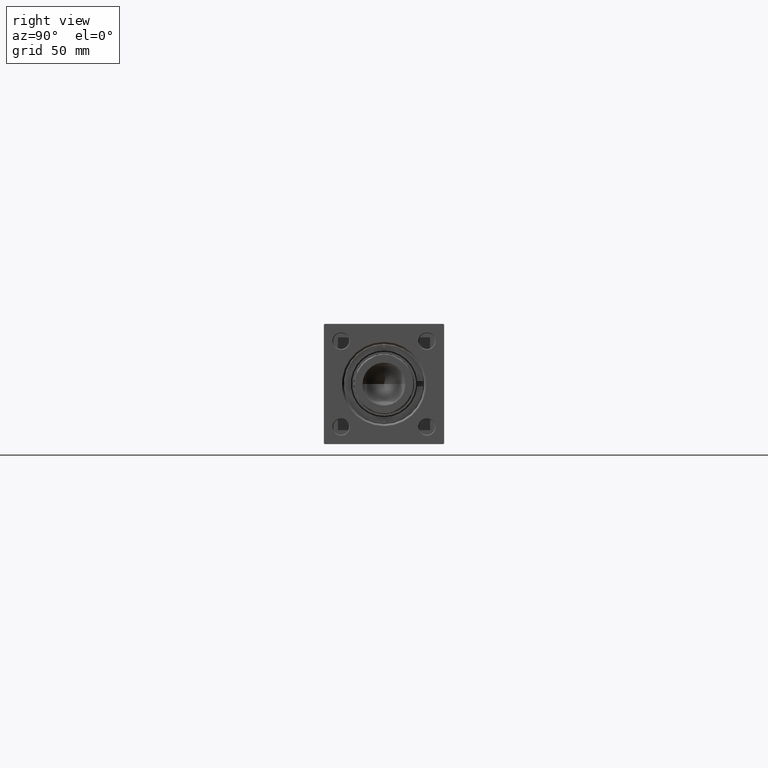
[diagram: clean part render]
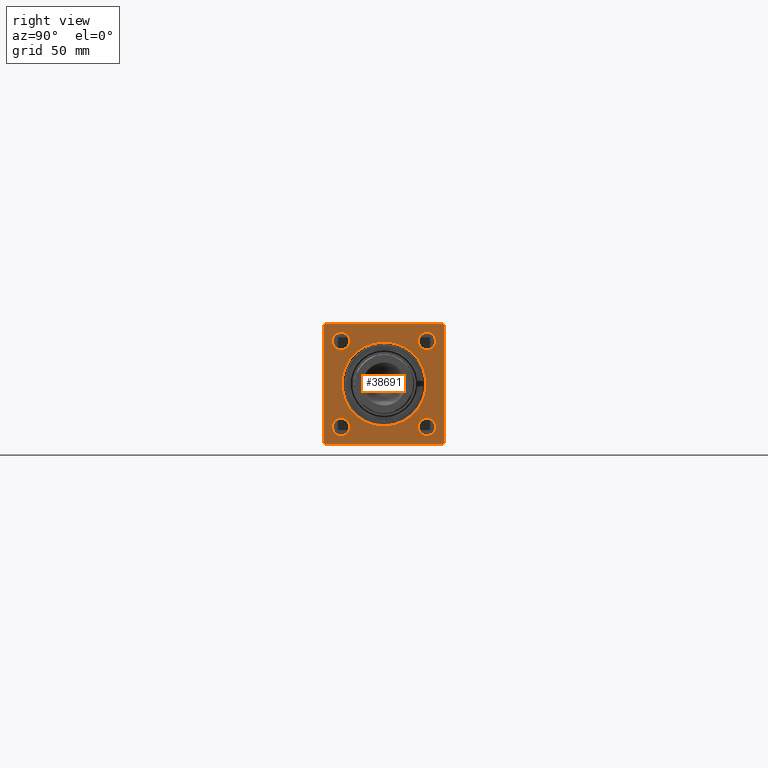
[diagram: same view with one face highlighted and labeled with its STEP entity id]
A machine part, right view. The second image highlights one B-rep face of the part: STEP entity #38691.
In plain terms, the highlighted planar face has unit normal (-1, 0, 0).
Its self-contained STEP definition (entity closure, byte-faithful):
#255 = LINE ( 'NONE', #24413, #6701 ) ;
#738 = CARTESIAN_POINT ( 'NONE',  ( 485.0000000000000000, 0.000000000000000000, -31.49999999999997158 ) ) ;
#910 = VERTEX_POINT ( 'NONE', #23471 ) ;
#1293 = EDGE_CURVE ( 'NONE', #10957, #35024, #255, .T. ) ;
#1385 = VECTOR ( 'NONE', #1933, 1000.000000000000000 ) ;
#1736 = EDGE_LOOP ( 'NONE', ( #35963, #15387 ) ) ;
#1933 = DIRECTION ( 'NONE',  ( 0.000000000000000000, -0.7071067811865867636, 0.7071067811865081598 ) ) ;
#2230 = LINE ( 'NONE', #43688, #28738 ) ;
#2316 = FACE_BOUND ( 'NONE', #1736, .T. ) ;
#2376 = LINE ( 'NONE', #13053, #46108 ) ;
#2484 = DIRECTION ( 'NONE',  ( 0.000000000000000000, 0.000000000000000000, 1.000000000000000000 ) ) ;
#3147 = EDGE_CURVE ( 'NONE', #46342, #42246, #20597, .T. ) ;
#4155 = CIRCLE ( 'NONE', #10653, 6.500000000000117240 ) ;
#4303 = AXIS2_PLACEMENT_3D ( 'NONE', #18286, #29988, #48560 ) ;
#5079 = CARTESIAN_POINT ( 'NONE',  ( 485.0000000000000000, -32.15000000000001279, -32.15000000000000568 ) ) ;
#6074 = CARTESIAN_POINT ( 'NONE',  ( 485.0000000000000000, 0.000000000000000000, 0.000000000000000000 ) ) ;
#6415 = EDGE_LOOP ( 'NONE', ( #9243, #41576 ) ) ;
#6531 = VERTEX_POINT ( 'NONE', #42997 ) ;
#6683 = EDGE_CURVE ( 'NONE', #30156, #33695, #39240, .T. ) ;
#6701 = VECTOR ( 'NONE', #20604, 1000.000000000000000 ) ;
#7299 = CARTESIAN_POINT ( 'NONE',  ( 485.0000000000000000, 32.14999999999999147, 32.15000000000000568 ) ) ;
#7445 = CARTESIAN_POINT ( 'NONE',  ( 485.0000000000000000, -45.00000000000000000, 44.49999999999992895 ) ) ;
#9243 = ORIENTED_EDGE ( 'NONE', *, *, #30256, .T. ) ;
#9400 = CIRCLE ( 'NONE', #28124, 6.500000000000117240 ) ;
#10089 = DIRECTION ( 'NONE',  ( 0.000000000000000000, 0.000000000000000000, -1.000000000000000000 ) ) ;
#10310 = CARTESIAN_POINT ( 'NONE',  ( 485.0000000000000000, 32.14999999999999147, 25.64999999999989555 ) ) ;
#10653 = AXIS2_PLACEMENT_3D ( 'NONE', #30955, #37391, #45020 ) ;
#10898 = CARTESIAN_POINT ( 'NONE',  ( 485.0000000000000000, -44.49999999999997158, 44.99999999999998579 ) ) ;
#10952 = VECTOR ( 'NONE', #33240, 1000.000000000000000 ) ;
#10957 = VERTEX_POINT ( 'NONE', #18826 ) ;
#11079 = CIRCLE ( 'NONE', #32182, 6.500000000000110134 ) ;
#11569 = EDGE_CURVE ( 'NONE', #20946, #30022, #42120, .T. ) ;
#12103 = ORIENTED_EDGE ( 'NONE', *, *, #32241, .T. ) ;
#12147 = CARTESIAN_POINT ( 'NONE',  ( 485.0000000000000000, 3.857637417314158745E-15, 31.49999999999997158 ) ) ;
#12238 = VERTEX_POINT ( 'NONE', #12147 ) ;
#12446 = EDGE_CURVE ( 'NONE', #48963, #30022, #25872, .T. ) ;
#13053 = CARTESIAN_POINT ( 'NONE',  ( 485.0000000000000000, 45.00000000000001421, -45.00000000000000000 ) ) ;
#13644 = EDGE_LOOP ( 'NONE', ( #12103, #45545 ) ) ;
#13758 = DIRECTION ( 'NONE',  ( -1.000000000000000000, 0.000000000000000000, -0.000000000000000000 ) ) ;
#14229 = EDGE_LOOP ( 'NONE', ( #32195, #50097 ) ) ;
#15387 = ORIENTED_EDGE ( 'NONE', *, *, #49745, .T. ) ;
#16036 = AXIS2_PLACEMENT_3D ( 'NONE', #7299, #35266, #35518 ) ;
#16880 = ORIENTED_EDGE ( 'NONE', *, *, #38389, .F. ) ;
#17005 = EDGE_CURVE ( 'NONE', #32395, #50107, #47683, .T. ) ;
#17057 = FACE_BOUND ( 'NONE', #14229, .T. ) ;
#17443 = EDGE_CURVE ( 'NONE', #34580, #910, #25395, .T. ) ;
#17567 = FACE_BOUND ( 'NONE', #6415, .T. ) ;
#17754 = CARTESIAN_POINT ( 'NONE',  ( 485.0000000000000000, -45.00000000000000000, 44.99999999999998579 ) ) ;
#17839 = VERTEX_POINT ( 'NONE', #738 ) ;
#18286 = CARTESIAN_POINT ( 'NONE',  ( 485.0000000000000000, -32.14999999999999147, 32.14999999999999147 ) ) ;
#18826 = CARTESIAN_POINT ( 'NONE',  ( 485.0000000000000000, 44.49999999999990052, 45.00000000000000000 ) ) ;
#18908 = EDGE_CURVE ( 'NONE', #910, #6531, #42727, .T. ) ;
#20119 = AXIS2_PLACEMENT_3D ( 'NONE', #36401, #13758, #40979 ) ;
#20597 = CIRCLE ( 'NONE', #24661, 6.500000000000117240 ) ;
#20604 = DIRECTION ( 'NONE',  ( 0.000000000000000000, -1.000000000000000000, -1.541976423090495140E-16 ) ) ;
#20634 = DIRECTION ( 'NONE',  ( 0.000000000000000000, 0.000000000000000000, 1.000000000000000000 ) ) ;
#20946 = VERTEX_POINT ( 'NONE', #26840 ) ;
#21098 = DIRECTION ( 'NONE',  ( 0.000000000000000000, 0.000000000000000000, 1.000000000000000000 ) ) ;
#21553 = CARTESIAN_POINT ( 'NONE',  ( 485.0000000000000000, 45.00000000000001421, -44.49999999999994316 ) ) ;
#21606 = DIRECTION ( 'NONE',  ( -1.000000000000000000, -0.000000000000000000, -0.000000000000000000 ) ) ;
#23110 = CIRCLE ( 'NONE', #24740, 31.49999999999997158 ) ;
#23161 = CARTESIAN_POINT ( 'NONE',  ( 485.0000000000000000, -44.49999999999992895, -45.00000000000000000 ) ) ;
#23251 = CARTESIAN_POINT ( 'NONE',  ( 485.0000000000000000, -32.14999999999999147, 32.14999999999999147 ) ) ;
#23326 = CARTESIAN_POINT ( 'NONE',  ( 485.0000000000000000, -32.14999999999999147, 38.65000000000010516 ) ) ;
#23391 = ORIENTED_EDGE ( 'NONE', *, *, #12446, .F. ) ;
#23471 = CARTESIAN_POINT ( 'NONE',  ( 485.0000000000000000, -44.99999999999999289, -44.49999999999997158 ) ) ;
#24413 = CARTESIAN_POINT ( 'NONE',  ( 485.0000000000000000, 45.00000000000001421, 45.00000000000000000 ) ) ;
#24661 = AXIS2_PLACEMENT_3D ( 'NONE', #5079, #25422, #36120 ) ;
#24694 = CARTESIAN_POINT ( 'NONE',  ( 485.0000000000000000, 32.14999999999999147, -32.15000000000000568 ) ) ;
#24710 = PLANE ( 'NONE',  #20119 ) ;
#24740 = AXIS2_PLACEMENT_3D ( 'NONE', #43631, #25075, #32450 ) ;
#25075 = DIRECTION ( 'NONE',  ( -1.000000000000000000, -0.000000000000000000, -0.000000000000000000 ) ) ;
#25174 = DIRECTION ( 'NONE',  ( 0.000000000000000000, 0.000000000000000000, 1.000000000000000000 ) ) ;
#25395 = LINE ( 'NONE', #17754, #50126 ) ;
#25422 = DIRECTION ( 'NONE',  ( -1.000000000000000000, -0.000000000000000000, -0.000000000000000000 ) ) ;
#25677 = CARTESIAN_POINT ( 'NONE',  ( 485.0000000000000000, 32.14999999999999147, 32.15000000000000568 ) ) ;
#25872 = LINE ( 'NONE', #45672, #40252 ) ;
#26480 = ORIENTED_EDGE ( 'NONE', *, *, #34998, .T. ) ;
#26840 = CARTESIAN_POINT ( 'NONE',  ( 485.0000000000000000, 44.50000000000001421, -45.00000000000000000 ) ) ;
#28124 = AXIS2_PLACEMENT_3D ( 'NONE', #24694, #28271, #20634 ) ;
#28271 = DIRECTION ( 'NONE',  ( -1.000000000000000000, -0.000000000000000000, -0.000000000000000000 ) ) ;
#28284 = CARTESIAN_POINT ( 'NONE',  ( 485.0000000000000000, 32.14999999999999147, -38.65000000000012648 ) ) ;
#28447 = DIRECTION ( 'NONE',  ( -0.000000000000000000, -0.7071067811865081598, -0.7071067811865867636 ) ) ;
#28738 = VECTOR ( 'NONE', #28447, 1000.000000000000000 ) ;
#28780 = FACE_BOUND ( 'NONE', #13644, .T. ) ;
#29038 = EDGE_CURVE ( 'NONE', #35024, #34580, #2230, .T. ) ;
#29646 = CARTESIAN_POINT ( 'NONE',  ( 485.0000000000000000, 44.49999999999990052, 45.00000000000000000 ) ) ;
#29963 = AXIS2_PLACEMENT_3D ( 'NONE', #6074, #21606, #21098 ) ;
#29988 = DIRECTION ( 'NONE',  ( -1.000000000000000000, -0.000000000000000000, -0.000000000000000000 ) ) ;
#30010 = CARTESIAN_POINT ( 'NONE',  ( 485.0000000000000000, -32.14999999999999147, 25.64999999999987423 ) ) ;
#30022 = VERTEX_POINT ( 'NONE', #44501 ) ;
#30156 = VERTEX_POINT ( 'NONE', #23326 ) ;
#30256 = EDGE_CURVE ( 'NONE', #17839, #12238, #23110, .T. ) ;
#30386 = VERTEX_POINT ( 'NONE', #49211 ) ;
#30955 = CARTESIAN_POINT ( 'NONE',  ( 485.0000000000000000, 32.14999999999999147, -32.15000000000000568 ) ) ;
#31123 = CARTESIAN_POINT ( 'NONE',  ( 485.0000000000000000, 32.14999999999999147, 38.65000000000011227 ) ) ;
#31627 = DIRECTION ( 'NONE',  ( 0.000000000000000000, 0.000000000000000000, 1.000000000000000000 ) ) ;
#31906 = ORIENTED_EDGE ( 'NONE', *, *, #17443, .T. ) ;
#32182 = AXIS2_PLACEMENT_3D ( 'NONE', #25677, #41187, #25174 ) ;
#32195 = ORIENTED_EDGE ( 'NONE', *, *, #3147, .T. ) ;
#32241 = EDGE_CURVE ( 'NONE', #33695, #30156, #43468, .T. ) ;
#32395 = VERTEX_POINT ( 'NONE', #31123 ) ;
#32427 = CARTESIAN_POINT ( 'NONE',  ( 485.0000000000000000, -32.15000000000001279, -25.64999999999988844 ) ) ;
#32450 = DIRECTION ( 'NONE',  ( 0.000000000000000000, 0.000000000000000000, 1.000000000000000000 ) ) ;
#32842 = FACE_OUTER_BOUND ( 'NONE', #40099, .T. ) ;
#33240 = DIRECTION ( 'NONE',  ( -0.000000000000000000, 0.7071067811865081598, 0.7071067811865867636 ) ) ;
#33517 = EDGE_CURVE ( 'NONE', #38655, #30386, #9400, .T. ) ;
#33695 = VERTEX_POINT ( 'NONE', #30010 ) ;
#34580 = VERTEX_POINT ( 'NONE', #7445 ) ;
#34998 = EDGE_CURVE ( 'NONE', #50107, #32395, #11079, .T. ) ;
#35024 = VERTEX_POINT ( 'NONE', #10898 ) ;
#35210 = ORIENTED_EDGE ( 'NONE', *, *, #37876, .T. ) ;
#35266 = DIRECTION ( 'NONE',  ( -1.000000000000000000, -0.000000000000000000, -0.000000000000000000 ) ) ;
#35518 = DIRECTION ( 'NONE',  ( 0.000000000000000000, 0.000000000000000000, 1.000000000000000000 ) ) ;
#35963 = ORIENTED_EDGE ( 'NONE', *, *, #33517, .T. ) ;
#36120 = DIRECTION ( 'NONE',  ( 0.000000000000000000, 0.000000000000000000, 1.000000000000000000 ) ) ;
#36401 = CARTESIAN_POINT ( 'NONE',  ( 485.0000000000000000, 0.000000000000000000, 0.000000000000000000 ) ) ;
#37021 = ORIENTED_EDGE ( 'NONE', *, *, #17005, .T. ) ;
#37391 = DIRECTION ( 'NONE',  ( -1.000000000000000000, -0.000000000000000000, -0.000000000000000000 ) ) ;
#37496 = ORIENTED_EDGE ( 'NONE', *, *, #1293, .T. ) ;
#37512 = CARTESIAN_POINT ( 'NONE',  ( 485.0000000000000000, 45.00000000000001421, 44.49999999999994316 ) ) ;
#37876 = EDGE_CURVE ( 'NONE', #48963, #10957, #40842, .T. ) ;
#38389 = EDGE_CURVE ( 'NONE', #20946, #6531, #2376, .T. ) ;
#38655 = VERTEX_POINT ( 'NONE', #28284 ) ;
#38671 = DIRECTION ( 'NONE',  ( 0.000000000000000000, 0.7071067811865916486, -0.7071067811865033859 ) ) ;
#38691 = ADVANCED_FACE ( 'NONE', ( #44013, #28780, #17057, #2316, #17567, #32842 ), #24710, .F. ) ;
#39240 = CIRCLE ( 'NONE', #4303, 6.500000000000117240 ) ;
#40099 = EDGE_LOOP ( 'NONE', ( #31906, #42993, #16880, #40313, #23391, #35210, #37496, #43455 ) ) ;
#40252 = VECTOR ( 'NONE', #10089, 1000.000000000000000 ) ;
#40313 = ORIENTED_EDGE ( 'NONE', *, *, #11569, .T. ) ;
#40568 = EDGE_CURVE ( 'NONE', #12238, #17839, #47813, .T. ) ;
#40731 = AXIS2_PLACEMENT_3D ( 'NONE', #44195, #44693, #2484 ) ;
#40842 = LINE ( 'NONE', #29646, #1385 ) ;
#40979 = DIRECTION ( 'NONE',  ( -0.000000000000000000, 0.000000000000000000, 1.000000000000000000 ) ) ;
#41187 = DIRECTION ( 'NONE',  ( -1.000000000000000000, -0.000000000000000000, -0.000000000000000000 ) ) ;
#41563 = CIRCLE ( 'NONE', #40731, 6.500000000000117240 ) ;
#41576 = ORIENTED_EDGE ( 'NONE', *, *, #40568, .T. ) ;
#42120 = LINE ( 'NONE', #21553, #10952 ) ;
#42246 = VERTEX_POINT ( 'NONE', #32427 ) ;
#42727 = LINE ( 'NONE', #23161, #43968 ) ;
#42815 = DIRECTION ( 'NONE',  ( -1.000000000000000000, -0.000000000000000000, -0.000000000000000000 ) ) ;
#42993 = ORIENTED_EDGE ( 'NONE', *, *, #18908, .T. ) ;
#42997 = CARTESIAN_POINT ( 'NONE',  ( 485.0000000000000000, -44.49999999999990052, -45.00000000000000000 ) ) ;
#43455 = ORIENTED_EDGE ( 'NONE', *, *, #29038, .T. ) ;
#43468 = CIRCLE ( 'NONE', #49131, 6.500000000000117240 ) ;
#43631 = CARTESIAN_POINT ( 'NONE',  ( 485.0000000000000000, 0.000000000000000000, 0.000000000000000000 ) ) ;
#43688 = CARTESIAN_POINT ( 'NONE',  ( 485.0000000000000000, -45.00000000000000000, 44.49999999999992895 ) ) ;
#43968 = VECTOR ( 'NONE', #38671, 1000.000000000000000 ) ;
#44013 = FACE_BOUND ( 'NONE', #49682, .T. ) ;
#44195 = CARTESIAN_POINT ( 'NONE',  ( 485.0000000000000000, -32.15000000000001279, -32.15000000000000568 ) ) ;
#44501 = CARTESIAN_POINT ( 'NONE',  ( 485.0000000000000000, 45.00000000000001421, -44.49999999999991473 ) ) ;
#44693 = DIRECTION ( 'NONE',  ( -1.000000000000000000, -0.000000000000000000, -0.000000000000000000 ) ) ;
#45020 = DIRECTION ( 'NONE',  ( 0.000000000000000000, 0.000000000000000000, 1.000000000000000000 ) ) ;
#45545 = ORIENTED_EDGE ( 'NONE', *, *, #6683, .T. ) ;
#45672 = CARTESIAN_POINT ( 'NONE',  ( 485.0000000000000000, 45.00000000000001421, 45.00000000000000000 ) ) ;
#46108 = VECTOR ( 'NONE', #48146, 1000.000000000000000 ) ;
#46342 = VERTEX_POINT ( 'NONE', #47760 ) ;
#47536 = DIRECTION ( 'NONE',  ( 0.000000000000000000, 7.709882115452478166E-17, -1.000000000000000000 ) ) ;
#47683 = CIRCLE ( 'NONE', #16036, 6.500000000000110134 ) ;
#47760 = CARTESIAN_POINT ( 'NONE',  ( 485.0000000000000000, -32.15000000000001279, -38.65000000000012648 ) ) ;
#47813 = CIRCLE ( 'NONE', #29963, 31.49999999999997158 ) ;
#48146 = DIRECTION ( 'NONE',  ( 0.000000000000000000, -1.000000000000000000, 0.000000000000000000 ) ) ;
#48560 = DIRECTION ( 'NONE',  ( 0.000000000000000000, 0.000000000000000000, 1.000000000000000000 ) ) ;
#48714 = EDGE_CURVE ( 'NONE', #42246, #46342, #41563, .T. ) ;
#48963 = VERTEX_POINT ( 'NONE', #37512 ) ;
#49131 = AXIS2_PLACEMENT_3D ( 'NONE', #23251, #42815, #31627 ) ;
#49211 = CARTESIAN_POINT ( 'NONE',  ( 485.0000000000000000, 32.14999999999999147, -25.64999999999988844 ) ) ;
#49682 = EDGE_LOOP ( 'NONE', ( #26480, #37021 ) ) ;
#49745 = EDGE_CURVE ( 'NONE', #30386, #38655, #4155, .T. ) ;
#50097 = ORIENTED_EDGE ( 'NONE', *, *, #48714, .T. ) ;
#50107 = VERTEX_POINT ( 'NONE', #10310 ) ;
#50126 = VECTOR ( 'NONE', #47536, 1000.000000000000000 ) ;